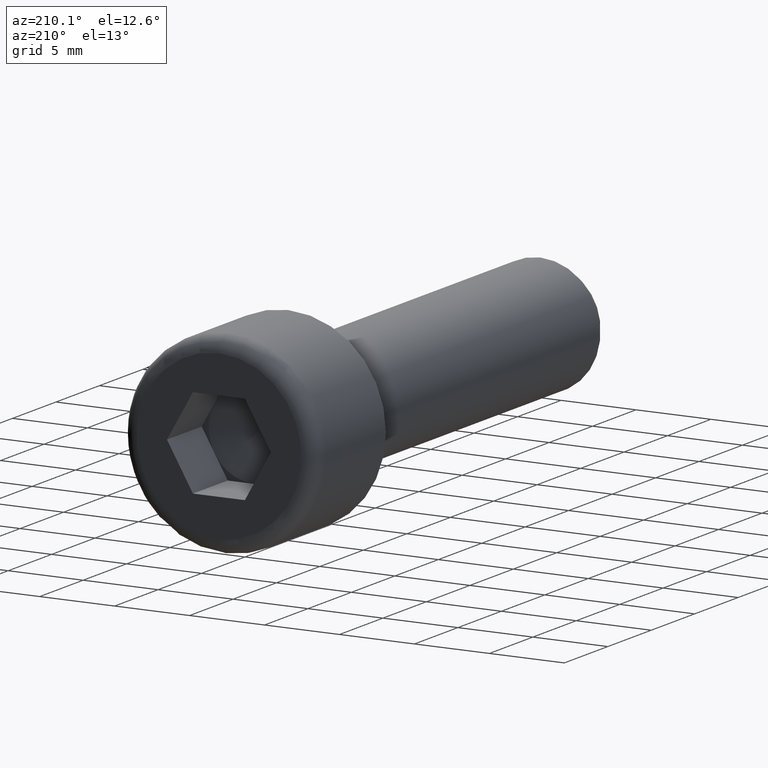
[diagram: clean part render]
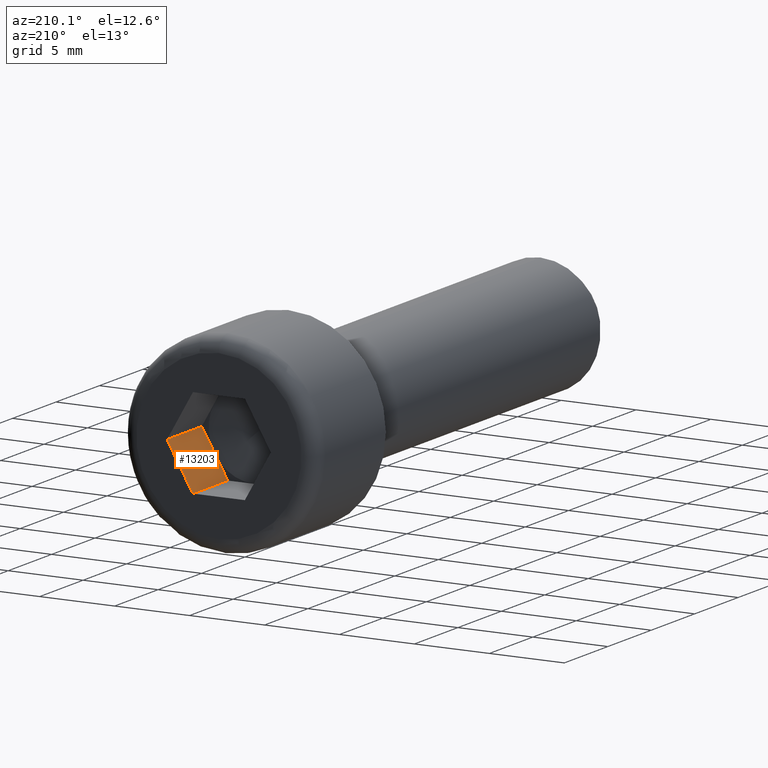
[diagram: same view with one face highlighted and labeled with its STEP entity id]
A machine part, auxiliary view. The second image highlights one B-rep face of the part: STEP entity #13203.
In plain terms, the highlighted planar face has unit normal (0.866, 0, -0.5).
Its self-contained STEP definition (entity closure, byte-faithful):
#193 = VERTEX_POINT ( 'NONE', #3671 ) ;
#538 = VECTOR ( 'NONE', #1259, 1000.000000000000200 ) ;
#652 = CARTESIAN_POINT ( 'NONE',  ( 1.732050807568876300, 8.000000000000000000, -3.000000000000000000 ) ) ;
#1090 = LINE ( 'NONE', #2181, #15477 ) ;
#1235 = EDGE_LOOP ( 'NONE', ( #12140, #5380, #2413, #14951, #6302 ) ) ;
#1259 = DIRECTION ( 'NONE',  ( -0.5000000000000002200, 0.0000000000000000000, -0.8660254037844384900 ) ) ;
#1624 = DIRECTION ( 'NONE',  ( -0.5000000000000002200, 0.0000000000000000000, -0.8660254037844384900 ) ) ;
#1776 = LINE ( 'NONE', #5827, #12763 ) ;
#2054 = EDGE_CURVE ( 'NONE', #13649, #2112, #6527, .T. ) ;
#2112 = VERTEX_POINT ( 'NONE', #12448 ) ;
#2181 = CARTESIAN_POINT ( 'NONE',  ( 1.732050807568876300, 4.000000000000000000, -3.000000000000000000 ) ) ;
#2413 = ORIENTED_EDGE ( 'NONE', *, *, #2054, .F. ) ;
#2541 = CARTESIAN_POINT ( 'NONE',  ( 3.464101615137755300, 8.000000000000000000, 8.032070669435346800E-016 ) ) ;
#2675 = PLANE ( 'NONE',  #7744 ) ;
#2895 = VECTOR ( 'NONE', #13410, 1000.000000000000200 ) ;
#2924 = LINE ( 'NONE', #3758, #538 ) ;
#3671 = CARTESIAN_POINT ( 'NONE',  ( 3.464101615137755300, 4.000000000000000000, 8.032070669435346800E-016 ) ) ;
#3758 = CARTESIAN_POINT ( 'NONE',  ( 3.464101615137755300, 4.000000000000000000, 8.032070669435346800E-016 ) ) ;
#4357 = VERTEX_POINT ( 'NONE', #2541 ) ;
#4526 = FACE_OUTER_BOUND ( 'NONE', #1235, .T. ) ;
#4582 = DIRECTION ( 'NONE',  ( -0.5000000000000002200, 0.0000000000000000000, -0.8660254037844384900 ) ) ;
#5326 = DIRECTION ( 'NONE',  ( 0.8660254037844386000, 0.0000000000000000000, -0.5000000000000003300 ) ) ;
#5380 = ORIENTED_EDGE ( 'NONE', *, *, #14413, .F. ) ;
#5746 = CARTESIAN_POINT ( 'NONE',  ( 3.464101615137755300, 4.000000000000000000, 8.032070669435346800E-016 ) ) ;
#5827 = CARTESIAN_POINT ( 'NONE',  ( 3.464101615137755300, 8.000000000000000000, 8.032070669435346800E-016 ) ) ;
#6302 = ORIENTED_EDGE ( 'NONE', *, *, #6875, .T. ) ;
#6527 = LINE ( 'NONE', #5746, #2895 ) ;
#6875 = EDGE_CURVE ( 'NONE', #193, #4357, #14000, .T. ) ;
#7744 = AXIS2_PLACEMENT_3D ( 'NONE', #7928, #5326, #1624 ) ;
#7928 = CARTESIAN_POINT ( 'NONE',  ( 3.464101615137755300, 4.000000000000000000, 8.032070669435346800E-016 ) ) ;
#8502 = DIRECTION ( 'NONE',  ( -0.0000000000000000000, 1.000000000000000000, -0.0000000000000000000 ) ) ;
#10717 = EDGE_CURVE ( 'NONE', #4357, #14738, #1776, .T. ) ;
#10957 = CARTESIAN_POINT ( 'NONE',  ( 3.464101615137755300, 4.000000000000000000, 8.032070669435346800E-016 ) ) ;
#12140 = ORIENTED_EDGE ( 'NONE', *, *, #10717, .T. ) ;
#12448 = CARTESIAN_POINT ( 'NONE',  ( 1.732050807568876300, 4.000000000000000000, -3.000000000000000000 ) ) ;
#12763 = VECTOR ( 'NONE', #4582, 1000.000000000000200 ) ;
#12873 = EDGE_CURVE ( 'NONE', #193, #13649, #2924, .T. ) ;
#13203 = ADVANCED_FACE ( 'NONE', ( #4526 ), #2675, .F. ) ;
#13410 = DIRECTION ( 'NONE',  ( -0.5000000000000002200, 0.0000000000000000000, -0.8660254037844384900 ) ) ;
#13649 = VERTEX_POINT ( 'NONE', #15481 ) ;
#14000 = LINE ( 'NONE', #10957, #14196 ) ;
#14196 = VECTOR ( 'NONE', #8502, 1000.000000000000000 ) ;
#14413 = EDGE_CURVE ( 'NONE', #2112, #14738, #1090, .T. ) ;
#14738 = VERTEX_POINT ( 'NONE', #652 ) ;
#14951 = ORIENTED_EDGE ( 'NONE', *, *, #12873, .F. ) ;
#15477 = VECTOR ( 'NONE', #16045, 1000.000000000000000 ) ;
#15481 = CARTESIAN_POINT ( 'NONE',  ( 2.598076211353315600, 3.999999999999999100, -1.500000000000000900 ) ) ;
#16045 = DIRECTION ( 'NONE',  ( -0.0000000000000000000, 1.000000000000000000, -0.0000000000000000000 ) ) ;